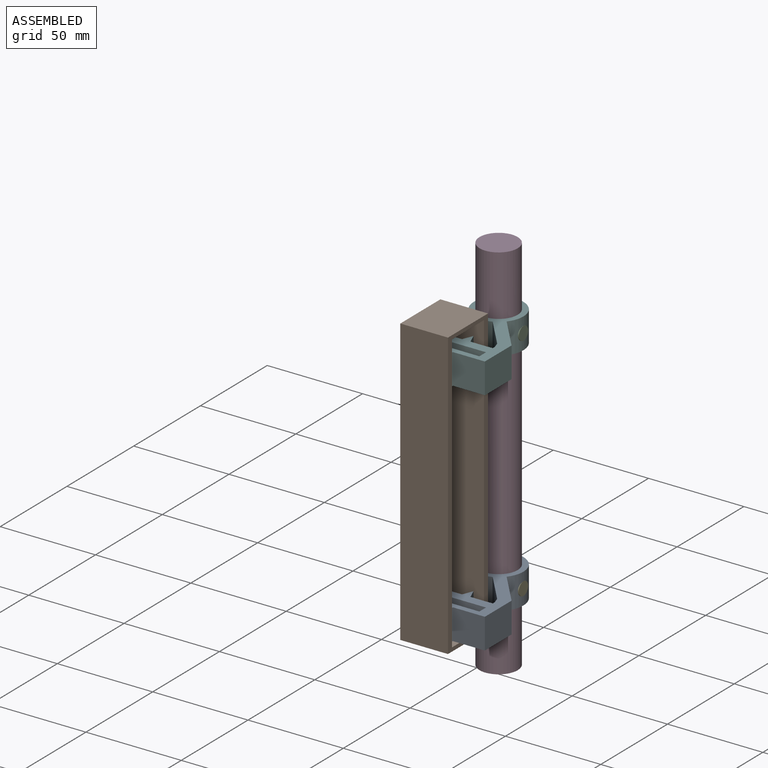
[diagram: assembled view]
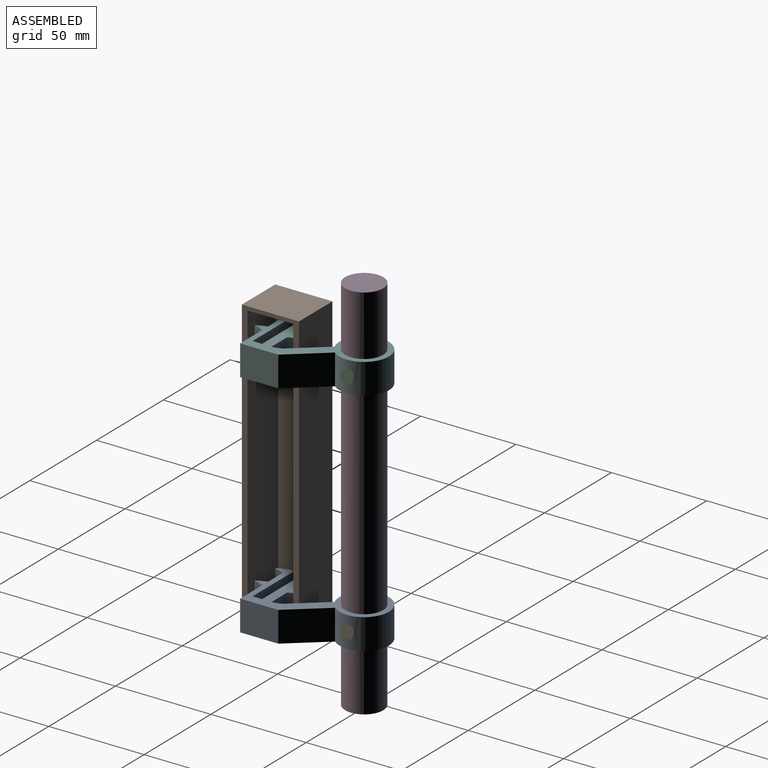
[diagram: assembled view, second angle]
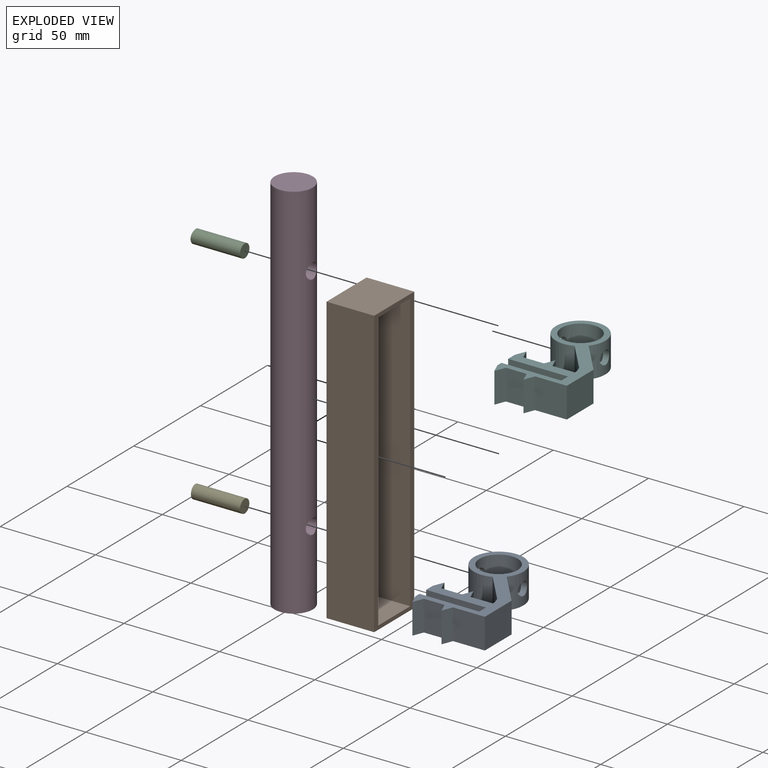
[diagram: exploded view]
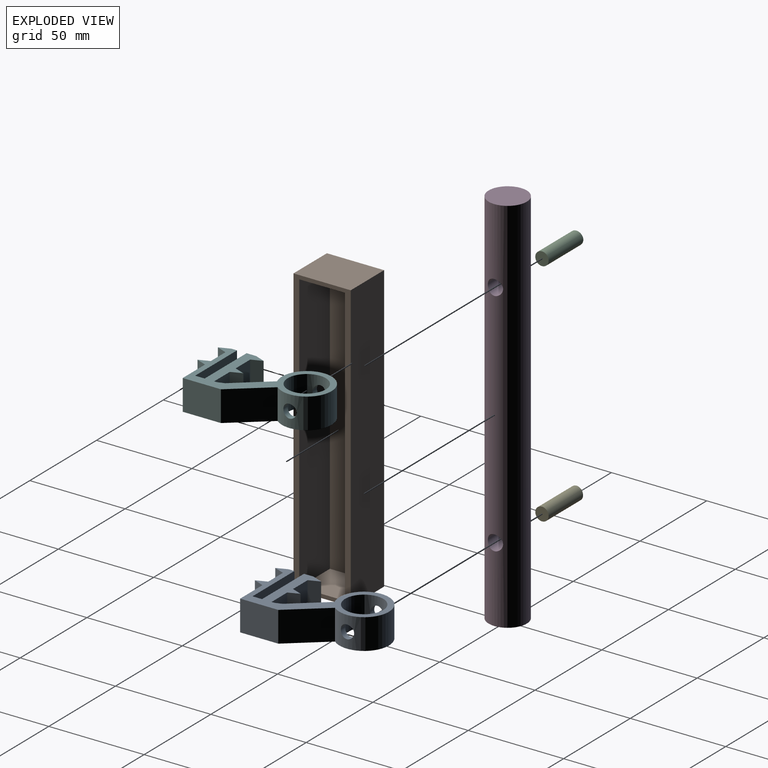
[diagram: exploded view, second angle]
ASSEMBLY  parts=6 mates=6
PART A: 28 faces, bbox 38.7x65.5x16 mm
  f0: plane 16x1.55mm, normal (-1,0,0), area 24.8mm2, adj f6,f7,f12,f20
  f1: plane 16x5mm, normal (-1,0,0), area 80mm2, adj f6,f7,f17,f21
  f2: cylinder r=13mm len=26mm, axis (0,0,-1), area 1132.2mm2, adj f4,f5,f6,f7,f8,f9
  f3: cylinder r=10mm len=20mm, axis (0,0,-1), area 927.2mm2, adj f6,f7,f8,f9
  f4: plane 18.74x16mm, normal (0.77,0.64,0), area 391.3mm2, adj f2,f6,f7,f10
  f5: plane 17.15x16mm, normal (-0.77,-0.64,0), area 358.3mm2, adj f2,f6,f7,f12
  f6: plane 65.54x38.72mm, normal (0,0,1), area 753.7mm2, adj f0,f1,f2,f3,f4,f5,f10,f11
  f7: plane 65.54x38.72mm, normal (0,0,-1), area 753.7mm2, adj f0,f1,f2,f3,f4,f5,f10,f11
  f8: cylinder r=3.5mm len=7mm, axis (-1,0,0), area 67.6mm2, adj f2,f3
  f9: cylinder r=3.5mm len=7mm, axis (-1,0,0), area 67.6mm2, adj f2,f3
  f10: plane 20x16mm, normal (1,0,0), area 320mm2, adj f4,f6,f7,f11
  f11: plane 16.68x16mm, normal (0,-1,0), area 266.9mm2, adj f6,f7,f10,f18
  f12: plane 16x3.42mm, normal (-0.95,-0.31,0), area 57.7mm2, adj f0,f5,f6,f7
  f13: plane 16x10.89mm, normal (0,-1,0), area 174.2mm2, adj f6,f7,f14,f19
  f14: plane 16x5.5mm, normal (0.93,-0.37,0), area 94.8mm2, adj f6,f7,f13,f15
  f15: plane 16x5.5mm, normal (-0.93,-0.37,0), area 94.8mm2, adj f6,f7,f14,f16
  f16: plane 16x3mm, normal (-1,0,0), area 48mm2, adj f6,f7,f15,f17
  f17: plane 31.4x16mm, normal (0,1,0), area 502.4mm2, adj f1,f6,f7,f16
  f18: plane 16x5.5mm, normal (0.93,-0.37,0), area 94.8mm2, adj f6,f7,f11,f19
  f19: plane 16x5.5mm, normal (-0.93,-0.37,0), area 94.8mm2, adj f6,f7,f13,f18
  f20: plane 16x11.68mm, normal (0,1,0), area 186.9mm2, adj f0,f6,f7,f25
  f21: plane 31.4x16mm, normal (0,-1,0), area 502.4mm2, adj f1,f6,f7,f22
  f22: plane 16x5mm, normal (-1,0,0), area 80mm2, adj f6,f7,f21,f23
  f23: plane 16x5.5mm, normal (-0.93,0.37,0), area 94.8mm2, adj f6,f7,f22,f24
  f24: plane 16x5.5mm, normal (0.93,0.37,0), area 94.8mm2, adj f6,f7,f23,f26
  f25: plane 16x5.5mm, normal (0.93,0.37,0), area 94.8mm2, adj f6,f7,f20,f27
  f26: plane 16x10.89mm, normal (0,1,0), area 174.2mm2, adj f6,f7,f24,f27
  f27: plane 16x5.5mm, normal (-0.93,0.37,0), area 94.8mm2, adj f6,f7,f25,f26
PART B: 11 faces, bbox 150x30x25 mm
  f0: plane 150x30mm, normal (0,0,1), area 996mm2, adj f1,f2,f3,f4,f6,f7,f8,f9
  f1: plane 30x25mm, normal (-1,0,0), area 750mm2, adj f0,f2,f4,f5
  f2: plane 150x25mm, normal (0,-1,0), area 3750mm2, adj f0,f1,f3,f5
  f3: plane 30x25mm, normal (1,0,0), area 750mm2, adj f0,f2,f4,f5
  f4: plane 150x25mm, normal (0,1,0), area 3750mm2, adj f0,f1,f3,f5
  f5: plane 150x30mm, normal (0,0,-1), area 4500mm2, adj f1,f2,f3,f4
  f6: plane 146x23mm, normal (0,-1,0), area 3358mm2, adj f0,f7,f9,f10
  f7: plane 24x23mm, normal (1,0,0), area 552mm2, adj f0,f6,f8,f10
  f8: plane 146x23mm, normal (0,1,0), area 3358mm2, adj f0,f7,f9,f10
  f9: plane 24x23mm, normal (-1,0,0), area 552mm2, adj f0,f6,f8,f10
  f10: plane 146x24mm, normal (0,0,1), area 3504mm2, adj f6,f7,f8,f9
PART C: 3 faces, bbox 7x7x26 mm
  f0: cylinder r=3.5mm len=26mm, axis (0,0,-1), area 569.2mm2, adj f1,f2
  f1: plane 7x7mm, normal (0,0,-1), area 38.5mm2, adj f0
  f2: cylinder r=26mm len=7mm, axis (1,0,0), area 38.6mm2, adj f0
PART D: 5 faces, bbox 20x20x200 mm
  f0: cylinder r=10mm len=200mm, axis (0,0,-1), area 12360.8mm2, adj f1,f2,f3,f4
  f1: plane 20x20mm, normal (0,0,1), area 314.2mm2, adj f0
  f2: plane 20x20mm, normal (0,0,-1), area 314.2mm2, adj f0
  f3: cylinder r=4mm len=20mm, axis (1,0,0), area 481.9mm2, adj f0
  f4: cylinder r=4mm len=20mm, axis (1,0,0), area 481.9mm2, adj f0
PART E: same geometry as C
PART F: same geometry as A
PLACE A rot(axis=(0.15,-0.02,0.99),0deg) t=(9.82,2.31,-101.83)mm
PLACE B rot(axis=(0,1,0),90deg) t=(-2.85,-38.23,-28.83)mm
PLACE C rot(axis=(0.58,-0.58,-0.58),120deg) t=(22.87,2.31,27.19)mm
PLACE D t=(9.82,2.31,-33.32)mm fixed
PLACE E rot(axis=(0,-1,0),90deg) t=(22.85,2.31,-93.83)mm
PLACE F rot(axis=(0.15,-0.02,0.99),0deg) t=(9.82,2.31,19.17)mm
MATE revolute A.f8 <-> E.f0  axis (-1,0,0) through (22.85,2.31,-93.83)mm
MATE planar A.f22 <-> B.f10  axis (-1,0,0) through (-0.85,-34.23,-93.83)mm
MATE planar A.f7 <-> B.f9  axis (0,0,-1) through (30.54,-39.23,-101.83)mm
MATE cylindrical C.f0 <-> D.f3  axis (1,0,0) through (9.79,2.31,27.19)mm
MATE cylindrical E.f0 <-> D.f4  axis (1,0,0) through (9.77,2.31,-93.83)mm
MATE cylindrical A.f3 <-> D.f0  axis (0,0,1) through (9.82,2.31,-85.83)mm
